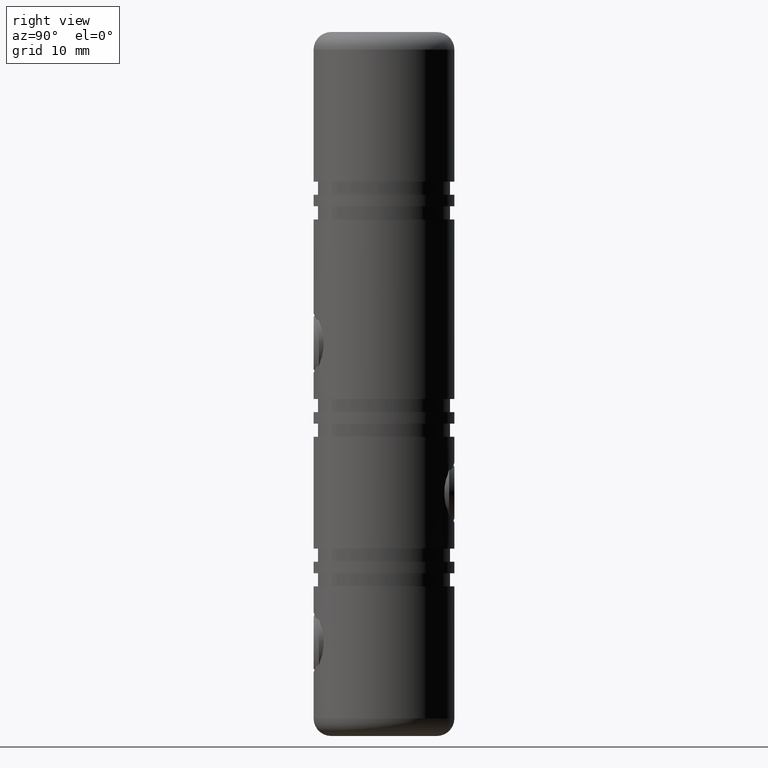
[diagram: clean part render]
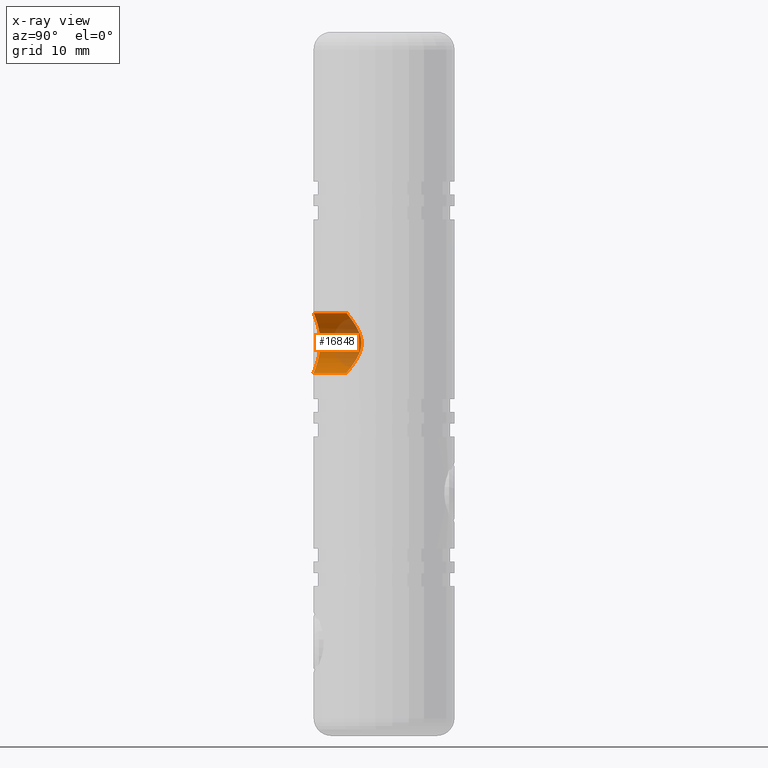
[diagram: x-ray — body ghosted, one internal face saturated and labeled with its STEP entity id]
A machine part, right view, then the same camera in x-ray: the body is ghosted and one INTERNAL B-rep face — a face not visible from any outside direction — is saturated and labeled: STEP entity #16848.
In plain terms, the highlighted cylindrical surface (edge-blend (fillet) strip) has radius 3.4 mm, axis along (-0, -1, -0).
Its self-contained STEP definition (entity closure, byte-faithful):
#47 = EDGE_LOOP ( 'NONE', ( #16428, #780, #16546, #83 ) ) ;
#83 = ORIENTED_EDGE ( 'NONE', *, *, #1421, .F. ) ;
#376 = CARTESIAN_POINT ( 'NONE',  ( -1.517492317834837400, -7.857517138549619400, 1.599296439580468500 ) ) ;
#415 = CARTESIAN_POINT ( 'NONE',  ( -3.044081216631086700, -2.968484599789994200, 3.119978271081659000 ) ) ;
#499 = CARTESIAN_POINT ( 'NONE',  ( -2.558707825223006400, -7.581525052417330100, 6.899714435682444200 ) ) ;
#535 = CARTESIAN_POINT ( 'NONE',  ( -0.2377176716988080000, -4.250000000000002700, 1.249999999999992000 ) ) ;
#594 = CARTESIAN_POINT ( 'NONE',  ( -2.941791992454637400, -3.071348472698008700, 6.367719939685829700 ) ) ;
#653 = CARTESIAN_POINT ( 'NONE',  ( -0.9322688655962357900, -4.152900605442615900, 1.372051939090490800 ) ) ;
#780 = ORIENTED_EDGE ( 'NONE', *, *, #5028, .T. ) ;
#1304 = CARTESIAN_POINT ( 'NONE',  ( 0.0000000000000000000, -7.999999999999984900, 1.249999999999996000 ) ) ;
#1421 = EDGE_CURVE ( 'NONE', #16196, #2093, #12228, .T. ) ;
#1472 = CARTESIAN_POINT ( 'NONE',  ( 0.0000000000000000000, -7.999999999999984900, 1.249999999999996000 ) ) ;
#1650 = CARTESIAN_POINT ( 'NONE',  ( -0.8892373204351076100, -7.953467606238761300, 1.360737315110352300 ) ) ;
#1751 = VECTOR ( 'NONE', #3972, 1000.000000000000000 ) ;
#1818 = CARTESIAN_POINT ( 'NONE',  ( -2.277165387376402200, -3.593042920499053100, 2.116275424425351700 ) ) ;
#1842 = CARTESIAN_POINT ( 'NONE',  ( -3.377400629329770700, -7.252276726733989600, 5.100793897847290200 ) ) ;
#1901 = CYLINDRICAL_SURFACE ( 'NONE', #7644, 3.399999999999998600 ) ;
#1903 = CARTESIAN_POINT ( 'NONE',  ( -1.711866527714951000, -7.816988843847580500, 1.704062518705975900 ) ) ;
#1962 = CARTESIAN_POINT ( 'NONE',  ( -2.079514783427193900, -7.727316472039703400, 1.950990382026850800 ) ) ;
#1993 = CARTESIAN_POINT ( 'NONE',  ( -3.350784512955221800, -2.614608978676852500, 5.237684746384403000 ) ) ;
#2016 = CARTESIAN_POINT ( 'NONE',  ( -2.560698463572158400, -7.580841636505397200, 2.402600874364157600 ) ) ;
#2093 = VERTEX_POINT ( 'NONE', #1304 ) ;
#2659 = VERTEX_POINT ( 'NONE', #7910 ) ;
#2850 = CARTESIAN_POINT ( 'NONE',  ( -0.4508286900878099600, -7.990315605014463300, 1.272612620018873900 ) ) ;
#3002 = CARTESIAN_POINT ( 'NONE',  ( -0.2340644780389039000, -4.250000000000007100, 8.049999999999991800 ) ) ;
#3201 = CARTESIAN_POINT ( 'NONE',  ( -3.377607747636803800, -7.252181089108774800, 4.200399511753227300 ) ) ;
#3351 = CARTESIAN_POINT ( 'NONE',  ( -2.575192330586767200, -3.385826943377432400, 2.419837026846885800 ) ) ;
#3408 = CARTESIAN_POINT ( 'NONE',  ( -3.207158787616019700, -2.789144576460047100, 5.784223093533359600 ) ) ;
#3972 = DIRECTION ( 'NONE',  ( -0.0000000000000000000, -1.000000000000000000, -0.0000000000000000000 ) ) ;
#4355 = CARTESIAN_POINT ( 'NONE',  ( 5.204869828399162700E-016, -4.250000000000005300, 8.049999999999990100 ) ) ;
#4416 = DIRECTION ( 'NONE',  ( 0.0000000000000000000, 0.0000000000000000000, -1.000000000000000000 ) ) ;
#4433 = CARTESIAN_POINT ( 'NONE',  ( -3.289212688573664300, -7.292697211694078700, 5.539454910976086700 ) ) ;
#4474 = CARTESIAN_POINT ( 'NONE',  ( -3.368886472613374000, -2.591045272109718600, 5.123593470458988700 ) ) ;
#4621 = CARTESIAN_POINT ( 'NONE',  ( -3.289197335690937000, -7.292704953102567200, 3.760305904924868200 ) ) ;
#4654 = CARTESIAN_POINT ( 'NONE',  ( -3.274329527855649200, -2.709974372644834000, 5.572548458293467500 ) ) ;
#4714 = CARTESIAN_POINT ( 'NONE',  ( -3.399907342035572100, -2.550123543850433300, 4.771079150757213200 ) ) ;
#5028 = EDGE_CURVE ( 'NONE', #2659, #11441, #8098, .T. ) ;
#5509 = DIRECTION ( 'NONE',  ( -0.0000000000000000000, -1.000000000000000000, -0.0000000000000000000 ) ) ;
#5786 = CARTESIAN_POINT ( 'NONE',  ( -1.561031229396859600, -3.958982752660176200, 7.678909064796017400 ) ) ;
#5810 = CARTESIAN_POINT ( 'NONE',  ( -2.700745179617467500, -7.531478555986090800, 6.727129767993232300 ) ) ;
#5975 = CARTESIAN_POINT ( 'NONE',  ( -0.4773165757177792500, -4.229406289657071700, 1.275650045664268300 ) ) ;
#6033 = CARTESIAN_POINT ( 'NONE',  ( -3.281516359163997100, -2.701822371603550100, 3.731030737608489900 ) ) ;
#6662 = CARTESIAN_POINT ( 'NONE',  ( 0.0000000000000000000, -9.999999999999992900, 1.249999999999992500 ) ) ;
#7163 = CARTESIAN_POINT ( 'NONE',  ( -2.111754519356527500, -3.693711082988452500, 7.323567107798975700 ) ) ;
#7192 = CARTESIAN_POINT ( 'NONE',  ( -1.105258292431825900, -7.925987433041098200, 7.872948277531945000 ) ) ;
#7230 = CARTESIAN_POINT ( 'NONE',  ( -1.758512740815503200, -3.874234428383223100, 1.732120464245954400 ) ) ;
#7254 = CARTESIAN_POINT ( 'NONE',  ( -0.2241770322401991900, -7.999999999999984900, 8.049999999999990100 ) ) ;
#7372 = CARTESIAN_POINT ( 'NONE',  ( -2.078971338478226900, -7.727461366633105100, 7.349421166247859500 ) ) ;
#7433 = CARTESIAN_POINT ( 'NONE',  ( -3.399848195578147400, -7.241618070215034600, 4.422839316068064800 ) ) ;
#7644 = AXIS2_PLACEMENT_3D ( 'NONE', #9702, #8326, #4416 ) ;
#7723 = B_SPLINE_CURVE_WITH_KNOTS ( 'NONE', 3,
 ( #4355, #3002, #11085, #13953, #14014, #5786, #15391, #7163, #9933, #11141, #10186, #594, #11433, #17023, #3408, #4654, #17084, #1993, #4474, #14135, #4714, #11558, #10065, #6033, #15457, #415, #12869, #10124, #3351, #1818, #8854, #7230, #16843, #14076, #653, #5975, #535, #12927 ),
 .UNSPECIFIED., .F., .F.,
 ( 4, 2, 2, 2, 2, 2, 2, 2, 2, 2, 2, 2, 2, 2, 2, 2, 2, 2, 4 ),
 ( 0.01125886574197647100, 0.01196025173107642700, 0.01266163772017638200, 0.01336302370927633700, 0.01406440969837629400, 0.01476579568747625000, 0.01546718167657620500, 0.01581787467112618200, 0.01616856766567616200, 0.01651926066022613900, 0.01686995365477611500, 0.01757133964387606900, 0.01827272563297602200, 0.01897411162207597600, 0.01967549761117592900, 0.02037688360027588300, 0.02107826958937583700, 0.02177965557847578700, 0.02248104156757574000 ),
 .UNSPECIFIED. ) ;
#7817 = CARTESIAN_POINT ( 'NONE',  ( 0.0000000000000000000, -4.250000000000003600, 1.249999999999992500 ) ) ;
#7910 = CARTESIAN_POINT ( 'NONE',  ( 5.204869828399162700E-016, -4.250000000000005300, 8.049999999999990100 ) ) ;
#8098 = LINE ( 'NONE', #9595, #17343 ) ;
#8326 = DIRECTION ( 'NONE',  ( -0.0000000000000000000, -1.000000000000000000, -0.0000000000000000000 ) ) ;
#8645 = CARTESIAN_POINT ( 'NONE',  ( -3.222491466063751400, -7.322849472457863700, 3.543475166988978600 ) ) ;
#8759 = CARTESIAN_POINT ( 'NONE',  ( -0.8924307161427954500, -7.953193821141142400, 7.938607481398636700 ) ) ;
#8854 = CARTESIAN_POINT ( 'NONE',  ( -2.112654676898778000, -3.693067787335895200, 1.977346213786677300 ) ) ;
#9595 = CARTESIAN_POINT ( 'NONE',  ( 4.163799117100999100E-016, -9.999999999999992900, 8.049999999999990100 ) ) ;
#9702 = CARTESIAN_POINT ( 'NONE',  ( -0.0000000000000000000, -9.999999999999992900, 4.649999999999990600 ) ) ;
#9933 = CARTESIAN_POINT ( 'NONE',  ( -2.276186838913903300, -3.593603919341587200, 7.184481248387188000 ) ) ;
#10065 = CARTESIAN_POINT ( 'NONE',  ( -3.375357304452711200, -2.583632483623800700, 4.181153342809138500 ) ) ;
#10124 = CARTESIAN_POINT ( 'NONE',  ( -2.707281899844068600, -3.279886112478098700, 2.582438679605144800 ) ) ;
#10186 = CARTESIAN_POINT ( 'NONE',  ( -2.706318939040059000, -3.280725433163784700, 6.718946523779095500 ) ) ;
#10456 = FACE_OUTER_BOUND ( 'NONE', #47, .T. ) ;
#11052 = CARTESIAN_POINT ( 'NONE',  ( -0.2275682172377071800, -7.999999999999984900, 1.249999999999996200 ) ) ;
#11085 = CARTESIAN_POINT ( 'NONE',  ( -0.4723087490074207600, -4.229944406267407000, 8.025021896438364200 ) ) ;
#11141 = CARTESIAN_POINT ( 'NONE',  ( -2.572400731970730700, -3.387885790416869500, 6.883243425654178800 ) ) ;
#11433 = CARTESIAN_POINT ( 'NONE',  ( -3.042601383736893700, -2.969948064230041300, 6.182558571408251600 ) ) ;
#11441 = VERTEX_POINT ( 'NONE', #11638 ) ;
#11457 = CARTESIAN_POINT ( 'NONE',  ( -2.947984114181080100, -7.438199899215198300, 2.941603559298287000 ) ) ;
#11519 = CARTESIAN_POINT ( 'NONE',  ( -2.248125463296716000, -7.679351519273356400, 7.210104036607175400 ) ) ;
#11558 = CARTESIAN_POINT ( 'NONE',  ( -3.400182263232782300, -2.549756982558891000, 4.415733148953706600 ) ) ;
#11577 = CARTESIAN_POINT ( 'NONE',  ( -2.700956509689372200, -7.531418326644432800, 2.572967821907203900 ) ) ;
#11638 = CARTESIAN_POINT ( 'NONE',  ( -8.690533494021589800E-021, -7.999999999999984900, 8.049999999999990100 ) ) ;
#12228 = LINE ( 'NONE', #6662, #1751 ) ;
#12651 = CARTESIAN_POINT ( 'NONE',  ( -3.400150270659237300, -7.241476242091581000, 4.872593499986670000 ) ) ;
#12838 = CARTESIAN_POINT ( 'NONE',  ( -3.050995330453258900, -7.395961113726398800, 6.167115178836628100 ) ) ;
#12869 = CARTESIAN_POINT ( 'NONE',  ( -2.941342439122103700, -3.071731246686342700, 2.931660756824933300 ) ) ;
#12927 = CARTESIAN_POINT ( 'NONE',  ( 0.0000000000000000000, -4.250000000000003600, 1.249999999999992500 ) ) ;
#13222 = EDGE_CURVE ( 'NONE', #2659, #16196, #7723, .T. ) ;
#13953 = CARTESIAN_POINT ( 'NONE',  ( -0.9264883476419844000, -4.154169541097894900, 7.929552972206884000 ) ) ;
#14014 = CARTESIAN_POINT ( 'NONE',  ( -1.146266525502787700, -4.098345518318920400, 7.858922198257150900 ) ) ;
#14039 = CARTESIAN_POINT ( 'NONE',  ( -1.106677539006646600, -7.925820042238339800, 1.427448220291510600 ) ) ;
#14076 = CARTESIAN_POINT ( 'NONE',  ( -1.153093657965646800, -4.096434210025863700, 1.443512796411153600 ) ) ;
#14135 = CARTESIAN_POINT ( 'NONE',  ( -3.393471760329801700, -2.558761630031931100, 4.890907144898052100 ) ) ;
#15391 = CARTESIAN_POINT ( 'NONE',  ( -1.753239456269876800, -3.876746074170057900, 7.571235977956213500 ) ) ;
#15398 = EDGE_CURVE ( 'NONE', #2093, #11441, #16748, .T. ) ;
#15416 = CARTESIAN_POINT ( 'NONE',  ( -1.711423150682558600, -7.817084609899581000, 7.596188598564029200 ) ) ;
#15457 = CARTESIAN_POINT ( 'NONE',  ( -3.214361426941596500, -2.783201733548348800, 3.520718121371620800 ) ) ;
#15544 = CARTESIAN_POINT ( 'NONE',  ( -3.223712962415413500, -7.322328047701458500, 5.753578591790784500 ) ) ;
#15605 = CARTESIAN_POINT ( 'NONE',  ( -3.052117988563396900, -7.395481825345655100, 3.135594427238359100 ) ) ;
#15664 = CARTESIAN_POINT ( 'NONE',  ( -2.251153436361762200, -7.678453278172060700, 2.092601388675165100 ) ) ;
#16196 = VERTEX_POINT ( 'NONE', #7817 ) ;
#16428 = ORIENTED_EDGE ( 'NONE', *, *, #13222, .F. ) ;
#16546 = ORIENTED_EDGE ( 'NONE', *, *, #15398, .F. ) ;
#16748 = B_SPLINE_CURVE_WITH_KNOTS ( 'NONE', 3,
 ( #1472, #11052, #2850, #1650, #14039, #376, #1903, #1962, #15664, #2016, #11577, #11457, #15605, #8645, #4621, #3201, #7433, #12651, #1842, #4433, #15544, #12838, #16984, #5810, #499, #11519, #7372, #15416, #17050, #7192, #8759, #16807, #7254, #16867 ),
 .UNSPECIFIED., .F., .F.,
 ( 4, 2, 2, 2, 2, 2, 2, 2, 2, 2, 2, 2, 2, 2, 2, 2, 4 ),
 ( 0.0000000000000000000, 0.0006724703690324913000, 0.001344940738064982600, 0.002017411107097473500, 0.002689881476129963900, 0.003362351845162454700, 0.004034822214194946000, 0.004707292583227437800, 0.005379762952259928600, 0.006052233321292419500, 0.006724703690324910400, 0.007397174059357402100, 0.008069644428389893800, 0.008742114797422385500, 0.009414585166454877300, 0.01008705553548736700, 0.01075952590451985900 ),
 .UNSPECIFIED. ) ;
#16807 = CARTESIAN_POINT ( 'NONE',  ( -0.4480185885091701500, -7.990557169816320900, 8.027965525901125300 ) ) ;
#16843 = CARTESIAN_POINT ( 'NONE',  ( -1.567775740160317400, -3.956321201529974500, 1.624563767093349700 ) ) ;
#16848 = ADVANCED_FACE ( 'NONE', ( #10456 ), #1901, .F. ) ;
#16867 = CARTESIAN_POINT ( 'NONE',  ( -8.690533494021589800E-021, -7.999999999999984900, 8.049999999999990100 ) ) ;
#16984 = CARTESIAN_POINT ( 'NONE',  ( -2.946119408307451800, -7.438922919112651600, 6.361395053839051400 ) ) ;
#17023 = CARTESIAN_POINT ( 'NONE',  ( -3.169136321832467700, -2.832481887811034000, 5.886169370442739400 ) ) ;
#17050 = CARTESIAN_POINT ( 'NONE',  ( -1.513787011564117900, -7.858200911489506200, 7.702448259390362900 ) ) ;
#17084 = CARTESIAN_POINT ( 'NONE',  ( -3.303613815699775200, -2.673961989325157600, 5.461951950617177900 ) ) ;
#17343 = VECTOR ( 'NONE', #5509, 1000.000000000000000 ) ;